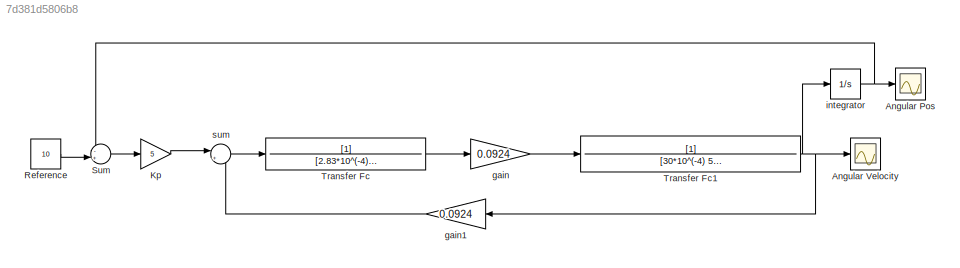
MODEL mdl_7d381d5806b8
KIND model
CONFIG AbsTol = auto
CONFIG EnableMultiTasking = off
CONFIG FixedStep = auto
CONFIG MaxStep = auto
CONFIG MinStep = auto
CONFIG RelTol = 1e-3
CONFIG SampleTimeConstraint = Unconstrained
CONFIG SolverName = VariableStepAuto
CONFIG StartTime = 0.0
CONFIG StopTime = 10.0
BLOCK [Scope] Angular Pos
  Floating = off
  NumInputPorts = 1
  ScopeSpecificationString = Simulink.scopes.TimeScopeBlockCfg('CurrentConfiguration', extmgr.ConfigurationSet(extmgr.Configuration('Core','General UI',true),extmgr.Configuration('Core','Source UI',true),extmgr.Configuration('Sources','WiredSimulink',true,'DataLoggingVariableName','ScopeData1'),extmgr.Configuration('Visuals','Time Domain',true,'SerializedDisplays',{struct('MinYLimReal','-1.96351','MaxYLimReal','17.67162','YLa...<+1541ch>
BLOCK [Scope] Angular Velocity
  Floating = off
  NumInputPorts = 1
  ScopeSpecificationString = Simulink.scopes.TimeScopeBlockCfg('CurrentConfiguration', extmgr.ConfigurationSet(extmgr.Configuration('Core','General UI',true),extmgr.Configuration('Core','Source UI',true),extmgr.Configuration('Sources','WiredSimulink',true,'DataLogging',true,'DataLoggingSaveFormat','Array'),extmgr.Configuration('Visuals','Time Domain',true,'SerializedDisplays',{struct('MinYLimReal','-6.38699','MaxYLimReal','6....<+1610ch>
BLOCK [Gain] Kp
  Gain = 5
BLOCK [Constant] Reference
  Value = 10
BLOCK [Sum] Sum
  Inputs = -+|
  NameLocation = top
BLOCK [TransferFcn] Transfer Fc
  Denominator = [2.83*10^(-4) 1.75]
BLOCK [TransferFcn] Transfer Fc1
  Denominator = [30*10^(-4) 5.0*10^(-3)]
BLOCK [Gain] gain
  Gain = 0.0924
BLOCK [Gain] gain1
  Gain = 0.0924
BLOCK [Integrator] integrator
BLOCK [Sum] sum
  Inputs = |+-
LINE Kp:1 -> sum:1
LINE Reference:1 -> Sum:2
LINE Sum:1 -> Kp:1
NET Transfer Fc1:1 -> Angular Velocity:1, gain1:1, integrator:1
LINE Transfer Fc:1 -> gain:1
LINE gain1:1 -> sum:2
LINE gain:1 -> Transfer Fc1:1
NET integrator:1 -> Angular Pos:1, Sum:1
LINE sum:1 -> Transfer Fc:1
note: NET lines group one-source signal fan-out (src -> all destinations, sorted); 1:1 wires keep LINE
